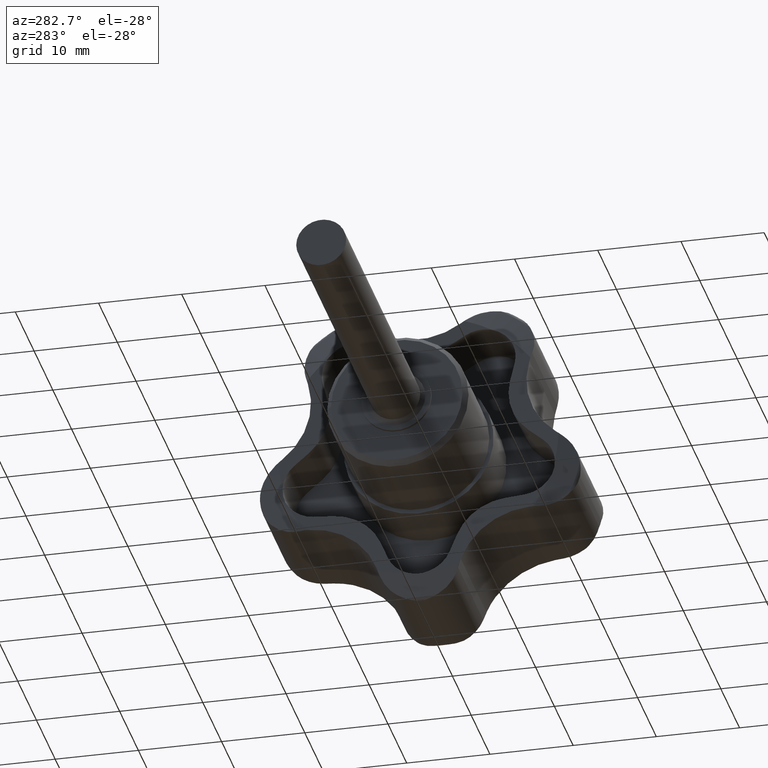
[diagram: clean part render]
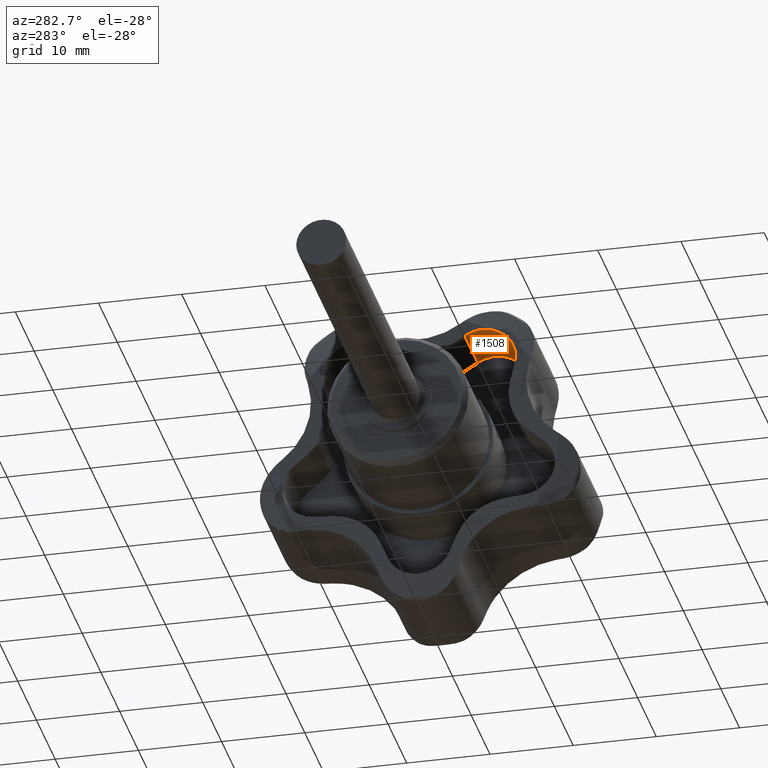
[diagram: same view with one face highlighted and labeled with its STEP entity id]
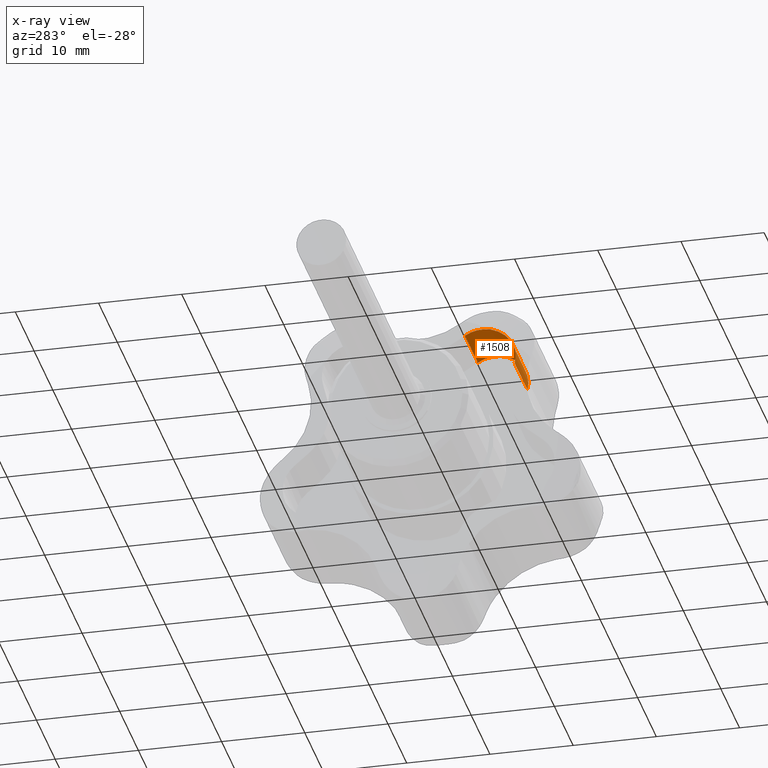
[diagram: x-ray of the same camera — body ghosted, the highlighted face saturated]
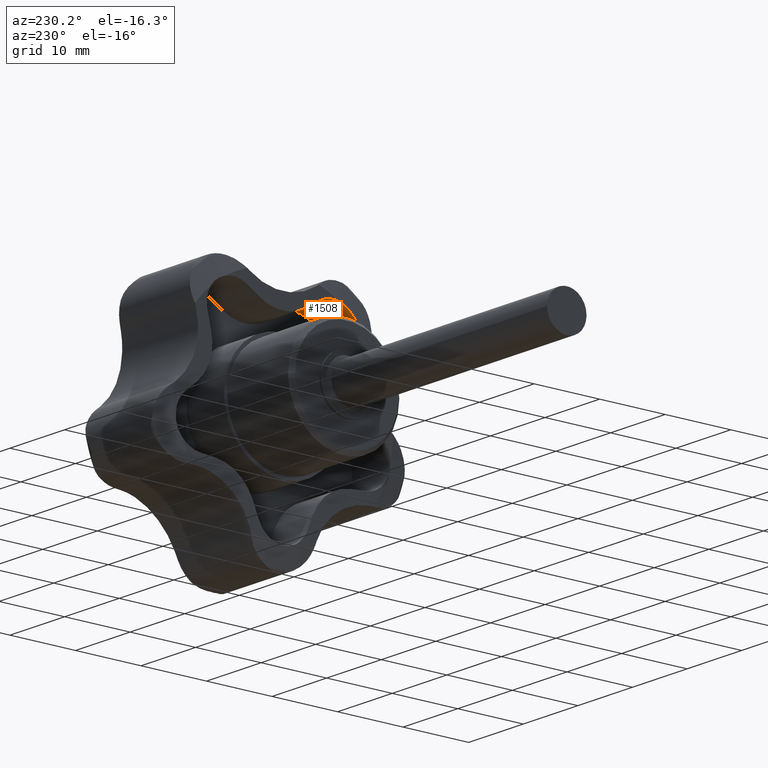
[diagram: same view with one face highlighted and labeled with its STEP entity id]
A machine part, auxiliary view. The second image highlights one B-rep face of the part: STEP entity #1508.
The next image is the same camera in x-ray: the body ghosted, the highlighted face saturated — about 0% of this face is hidden behind the body in this view.
A second angle (auxiliary view) of the same face is appended — the face is thin or edge-on in the first view.
In plain terms, the highlighted cylindrical surface (edge-blend (fillet) strip) has radius 4 mm, axis along (1, 0, 0).
Its self-contained STEP definition (entity closure, byte-faithful):
#112=LINE('',#3073,#192);
#125=LINE('',#3106,#205);
#192=VECTOR('',#2047,6.9);
#205=VECTOR('',#2084,6.9);
#273=B_SPLINE_CURVE_WITH_KNOTS('',3,(#2975,#2976,#2977,#2978,#2979,#2980),
 .UNSPECIFIED.,.F.,.F.,(4,2,4),(0.600800453896133,0.742189715482242,0.883578977068351),
 .UNSPECIFIED.);
#376=FACE_OUTER_BOUND('',#469,.T.);
#469=EDGE_LOOP('',(#1349,#1350,#1351,#1352,#1353,#1354));
#530=CIRCLE('',#1604,4.);
#537=CIRCLE('',#1612,4.);
#565=CIRCLE('',#1678,4.);
#683=VERTEX_POINT('',#2929);
#684=VERTEX_POINT('',#2931);
#693=VERTEX_POINT('',#2951);
#694=VERTEX_POINT('',#2953);
#712=VERTEX_POINT('',#3072);
#720=VERTEX_POINT('',#3104);
#869=EDGE_CURVE('',#683,#684,#530,.T.);
#880=EDGE_CURVE('',#693,#694,#537,.T.);
#891=EDGE_CURVE('',#694,#683,#273,.T.);
#927=EDGE_CURVE('',#712,#684,#112,.T.);
#944=EDGE_CURVE('',#720,#693,#125,.T.);
#945=EDGE_CURVE('',#720,#712,#565,.T.);
#1349=ORIENTED_EDGE('',*,*,#869,.F.);
#1350=ORIENTED_EDGE('',*,*,#891,.F.);
#1351=ORIENTED_EDGE('',*,*,#880,.F.);
#1352=ORIENTED_EDGE('',*,*,#944,.F.);
#1353=ORIENTED_EDGE('',*,*,#945,.T.);
#1354=ORIENTED_EDGE('',*,*,#927,.T.);
#1429=CYLINDRICAL_SURFACE('',#1677,4.);
#1508=ADVANCED_FACE('',(#376),#1429,.F.);
#1604=AXIS2_PLACEMENT_3D('',#2932,#1903,#1904);
#1612=AXIS2_PLACEMENT_3D('',#2954,#1923,#1924);
#1677=AXIS2_PLACEMENT_3D('',#3107,#2085,#2086);
#1678=AXIS2_PLACEMENT_3D('',#3108,#2087,#2088);
#1903=DIRECTION('center_axis',(1.,0.,0.));
#1904=DIRECTION('ref_axis',(0.,0.523477420524335,0.852039547322299));
#1923=DIRECTION('center_axis',(1.,0.,0.));
#1924=DIRECTION('ref_axis',(0.,0.523477420524335,0.852039547322299));
#2047=DIRECTION('',(-1.,0.,0.));
#2084=DIRECTION('',(-1.,0.,0.));
#2085=DIRECTION('center_axis',(1.,0.,0.));
#2086=DIRECTION('ref_axis',(0.,0.523477420524335,0.852039547322299));
#2087=DIRECTION('center_axis',(1.,0.,0.));
#2088=DIRECTION('ref_axis',(0.,0.523477420524335,0.852039547322299));
#2929=CARTESIAN_POINT('',(12.,-10.9871892291753,12.7091177051082));
#2931=CARTESIAN_POINT('',(12.,-11.5296130107447,9.57897327919065));
#2932=CARTESIAN_POINT('Origin',(12.,-7.64120827980215,10.5172209268743));
#2951=CARTESIAN_POINT('',(12.,-5.54729859770481,13.9253791161635));
#2953=CARTESIAN_POINT('',(12.,-8.69186101757673,14.376771266565));
#2954=CARTESIAN_POINT('Origin',(12.,-7.64120827980215,10.5172209268743));
#2975=CARTESIAN_POINT('Ctrl Pts',(12.,-8.69186101757674,14.376771266565));
#2976=CARTESIAN_POINT('Ctrl Pts',(12.0360240145072,-9.16456051573364,14.2480922811465));
#2977=CARTESIAN_POINT('Ctrl Pts',(12.0535898384863,-9.61106157082109,14.0303106470169));
#2978=CARTESIAN_POINT('Ctrl Pts',(12.0535898384863,-10.373637007123,13.4762671617313));
#2979=CARTESIAN_POINT('Ctrl Pts',(12.0360240145072,-10.7187360634197,13.1189176497665));
#2980=CARTESIAN_POINT('Ctrl Pts',(12.,-10.9871892291753,12.7091177051082));
#3072=CARTESIAN_POINT('',(18.9,-11.5296130107447,9.57897327919065));
#3073=CARTESIAN_POINT('',(18.9,-11.5296130107447,9.57897327919065));
#3104=CARTESIAN_POINT('',(18.9,-5.54729859770481,13.9253791161635));
#3106=CARTESIAN_POINT('',(18.9,-5.54729859770481,13.9253791161635));
#3107=CARTESIAN_POINT('Origin',(18.9,-7.64120827980215,10.5172209268743));
#3108=CARTESIAN_POINT('Origin',(18.9,-7.64120827980215,10.5172209268743));